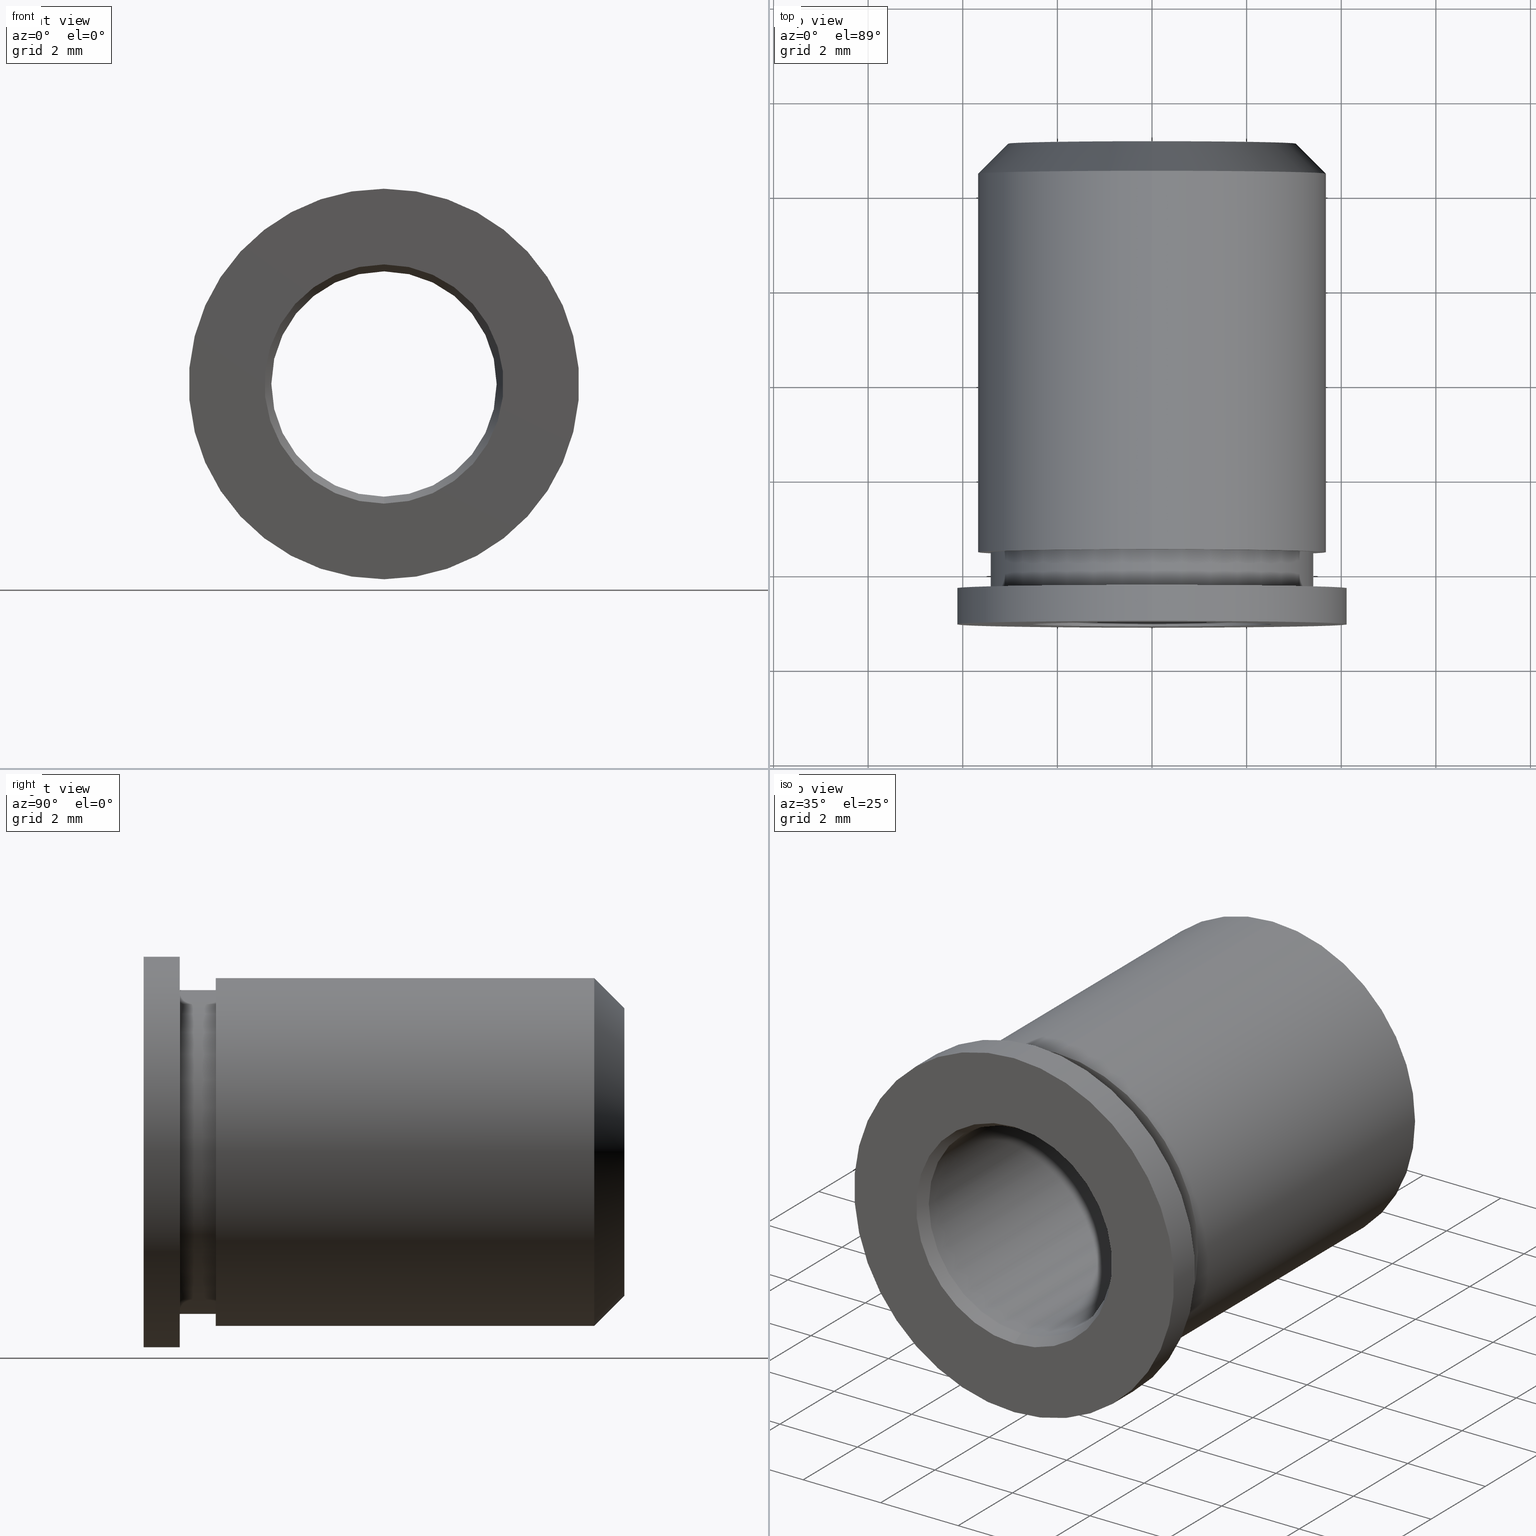
[diagram: canonical four-view strip — front | top / right | iso, engineering-drawing reading convention]
A machine part, canonical four-view strip (front | top / right | iso — engineering-drawing reading convention). The complete STEP part file that produces these views, byte-faithful:
ISO-10303-21;
HEADER;
FILE_DESCRIPTION (( 'STEP AP214' ),
    '1' );
FILE_NAME ('18988-E0W.STEP',
    '2009-04-23T20:28:47',
    ( '' ),
    ( '' ),
    'SwSTEP 2.0',
    'SolidWorks 2007',
    '' );
FILE_SCHEMA (( 'AUTOMOTIVE_DESIGN' ));
ENDSEC;

DATA;
#1 = ORIENTED_EDGE ( 'NONE', *, *, #207, .T. ) ;
#2 = ORIENTED_EDGE ( 'NONE', *, *, #3, .F. ) ;
#3 = EDGE_CURVE ( 'NONE', #29, #113, #163, .T. ) ;
#4 = ADVANCED_FACE ( 'NONE', ( #158 ), #284, .T. ) ;
#5 = EDGE_LOOP ( 'NONE', ( #60, #44, #59, #37 ) ) ;
#6 = EDGE_CURVE ( 'NONE', #117, #120, #211, .T. ) ;
#7 = ORIENTED_EDGE ( 'NONE', *, *, #6, .F. ) ;
#8 = ORIENTED_EDGE ( 'NONE', *, *, #115, .T. ) ;
#9 = ORIENTED_EDGE ( 'NONE', *, *, #41, .T. ) ;
#10 = ADVANCED_FACE ( 'NONE', ( #212, #187 ), #217, .T. ) ;
#11 = EDGE_LOOP ( 'NONE', ( #12, #13 ) ) ;
#12 = ORIENTED_EDGE ( 'NONE', *, *, #3, .T. ) ;
#13 = ORIENTED_EDGE ( 'NONE', *, *, #95, .T. ) ;
#14 = EDGE_LOOP ( 'NONE', ( #15, #38 ) ) ;
#15 = ORIENTED_EDGE ( 'NONE', *, *, #16, .F. ) ;
#16 = EDGE_CURVE ( 'NONE', #96, #89, #157, .T. ) ;
#17 = ORIENTED_EDGE ( 'NONE', *, *, #18, .F. ) ;
#18 = EDGE_CURVE ( 'NONE', #87, #75, #230, .T. ) ;
#19 = ORIENTED_EDGE ( 'NONE', *, *, #76, .F. ) ;
#20 = ORIENTED_EDGE ( 'NONE', *, *, #21, .F. ) ;
#21 = EDGE_CURVE ( 'NONE', #236, #280, #179, .T. ) ;
#22 = ORIENTED_EDGE ( 'NONE', *, *, #82, .T. ) ;
#23 = EDGE_LOOP ( 'NONE', ( #57, #58, #45, #46 ) ) ;
#24 = ADVANCED_FACE ( 'NONE', ( #175, #174 ), #265, .T. ) ;
#25 = EDGE_LOOP ( 'NONE', ( #112, #78, #81, #110 ) ) ;
#26 = EDGE_CURVE ( 'NONE', #113, #125, #260, .T. ) ;
#27 = ORIENTED_EDGE ( 'NONE', *, *, #82, .F. ) ;
#28 = ORIENTED_EDGE ( 'NONE', *, *, #61, .F. ) ;
#29 = VERTEX_POINT ( 'NONE', #256 ) ;
#30 = VERTEX_POINT ( 'NONE', #255 ) ;
#31 = ORIENTED_EDGE ( 'NONE', *, *, #128, .F. ) ;
#32 = ADVANCED_FACE ( 'NONE', ( #254 ), #332, .T. ) ;
#33 = ADVANCED_FACE ( 'NONE', ( #294 ), #309, .T. ) ;
#34 = ORIENTED_EDGE ( 'NONE', *, *, #35, .T. ) ;
#35 = EDGE_CURVE ( 'NONE', #117, #92, #355, .T. ) ;
#36 = ORIENTED_EDGE ( 'NONE', *, *, #90, .F. ) ;
#37 = ORIENTED_EDGE ( 'NONE', *, *, #43, .F. ) ;
#38 = ORIENTED_EDGE ( 'NONE', *, *, #73, .F. ) ;
#39 = ADVANCED_FACE ( 'NONE', ( #312 ), #383, .F. ) ;
#40 = EDGE_LOOP ( 'NONE', ( #19, #20, #22, #275 ) ) ;
#41 = EDGE_CURVE ( 'NONE', #30, #125, #375, .T. ) ;
#42 = ADVANCED_FACE ( 'NONE', ( #376 ), #344, .T. ) ;
#43 = EDGE_CURVE ( 'NONE', #92, #94, #352, .T. ) ;
#44 = ORIENTED_EDGE ( 'NONE', *, *, #6, .T. ) ;
#45 = ORIENTED_EDGE ( 'NONE', *, *, #90, .T. ) ;
#46 = ORIENTED_EDGE ( 'NONE', *, *, #41, .F. ) ;
#47 = EDGE_LOOP ( 'NONE', ( #48, #2, #8, #9 ) ) ;
#48 = ORIENTED_EDGE ( 'NONE', *, *, #26, .F. ) ;
#49 = EDGE_LOOP ( 'NONE', ( #164, #1, #135, #245 ) ) ;
#50 = ORIENTED_EDGE ( 'NONE', *, *, #108, .F. ) ;
#51 = ORIENTED_EDGE ( 'NONE', *, *, #101, .T. ) ;
#52 = EDGE_LOOP ( 'NONE', ( #51, #55 ) ) ;
#53 = EDGE_LOOP ( 'NONE', ( #56, #17 ) ) ;
#54 = ADVANCED_FACE ( 'NONE', ( #368 ), #378, .T. ) ;
#55 = ORIENTED_EDGE ( 'NONE', *, *, #43, .T. ) ;
#56 = ORIENTED_EDGE ( 'NONE', *, *, #100, .F. ) ;
#57 = ORIENTED_EDGE ( 'NONE', *, *, #72, .F. ) ;
#58 = ORIENTED_EDGE ( 'NONE', *, *, #18, .T. ) ;
#59 = ORIENTED_EDGE ( 'NONE', *, *, #80, .T. ) ;
#60 = ORIENTED_EDGE ( 'NONE', *, *, #35, .F. ) ;
#61 = EDGE_CURVE ( 'NONE', #125, #30, #291, .T. ) ;
#62 = EDGE_CURVE ( 'NONE', #63, #124, #551, .T. ) ;
#63 = VERTEX_POINT ( 'NONE', #538 ) ;
#64 = ORIENTED_EDGE ( 'NONE', *, *, #65, .F. ) ;
#65 = EDGE_CURVE ( 'NONE', #122, #63, #507, .T. ) ;
#66 = ADVANCED_FACE ( 'NONE', ( #394 ), #557, .T. ) ;
#67 = EDGE_LOOP ( 'NONE', ( #68, #77, #86, #64 ) ) ;
#68 = ORIENTED_EDGE ( 'NONE', *, *, #102, .T. ) ;
#69 = ORIENTED_EDGE ( 'NONE', *, *, #84, .T. ) ;
#70 = EDGE_LOOP ( 'NONE', ( #71, #7 ) ) ;
#71 = ORIENTED_EDGE ( 'NONE', *, *, #116, .F. ) ;
#72 = EDGE_CURVE ( 'NONE', #87, #30, #517, .T. ) ;
#73 = EDGE_CURVE ( 'NONE', #89, #96, #398, .T. ) ;
#74 = ORIENTED_EDGE ( 'NONE', *, *, #100, .T. ) ;
#75 = VERTEX_POINT ( 'NONE', #396 ) ;
#76 = EDGE_CURVE ( 'NONE', #280, #89, #520, .T. ) ;
#77 = ORIENTED_EDGE ( 'NONE', *, *, #85, .T. ) ;
#78 = ORIENTED_EDGE ( 'NONE', *, *, #26, .T. ) ;
#79 = ORIENTED_EDGE ( 'NONE', *, *, #80, .F. ) ;
#80 = EDGE_CURVE ( 'NONE', #120, #94, #446, .T. ) ;
#81 = ORIENTED_EDGE ( 'NONE', *, *, #61, .T. ) ;
#82 = EDGE_CURVE ( 'NONE', #236, #96, #561, .T. ) ;
#83 = ORIENTED_EDGE ( 'NONE', *, *, #84, .F. ) ;
#84 = EDGE_CURVE ( 'NONE', #124, #63, #449, .T. ) ;
#85 = EDGE_CURVE ( 'NONE', #123, #124, #487, .T. ) ;
#86 = ORIENTED_EDGE ( 'NONE', *, *, #62, .F. ) ;
#87 = VERTEX_POINT ( 'NONE', #483 ) ;
#88 = ORIENTED_EDGE ( 'NONE', *, *, #72, .T. ) ;
#89 = VERTEX_POINT ( 'NONE', #482 ) ;
#90 = EDGE_CURVE ( 'NONE', #75, #125, #430, .T. ) ;
#91 = ADVANCED_FACE ( 'NONE', ( #573 ), #467, .T. ) ;
#92 = VERTEX_POINT ( 'NONE', #436 ) ;
#93 = ORIENTED_EDGE ( 'NONE', *, *, #101, .F. ) ;
#94 = VERTEX_POINT ( 'NONE', #435 ) ;
#95 = EDGE_CURVE ( 'NONE', #113, #29, #434, .T. ) ;
#96 = VERTEX_POINT ( 'NONE', #475 ) ;
#97 = ORIENTED_EDGE ( 'NONE', *, *, #73, .T. ) ;
#98 = ADVANCED_FACE ( 'NONE', ( #474, #473 ), #424, .T. ) ;
#99 = EDGE_LOOP ( 'NONE', ( #121, #69 ) ) ;
#100 = EDGE_CURVE ( 'NONE', #75, #87, #419, .T. ) ;
#101 = EDGE_CURVE ( 'NONE', #94, #92, #505, .T. ) ;
#102 = EDGE_CURVE ( 'NONE', #122, #123, #499, .T. ) ;
#103 = ADVANCED_FACE ( 'NONE', ( #494 ), #407, .T. ) ;
#104 = EDGE_LOOP ( 'NONE', ( #119, #34, #93, #79 ) ) ;
#105 = EDGE_LOOP ( 'NONE', ( #31, #114, #97, #27 ) ) ;
#106 = ORIENTED_EDGE ( 'NONE', *, *, #85, .F. ) ;
#107 = ORIENTED_EDGE ( 'NONE', *, *, #108, .T. ) ;
#108 = EDGE_CURVE ( 'NONE', #123, #122, #408, .T. ) ;
#109 = ORIENTED_EDGE ( 'NONE', *, *, #65, .T. ) ;
#110 = ORIENTED_EDGE ( 'NONE', *, *, #115, .F. ) ;
#111 = EDGE_LOOP ( 'NONE', ( #74, #88, #28, #36 ) ) ;
#112 = ORIENTED_EDGE ( 'NONE', *, *, #95, .F. ) ;
#113 = VERTEX_POINT ( 'NONE', #530 ) ;
#114 = ORIENTED_EDGE ( 'NONE', *, *, #76, .T. ) ;
#115 = EDGE_CURVE ( 'NONE', #29, #30, #529, .T. ) ;
#116 = EDGE_CURVE ( 'NONE', #120, #117, #525, .T. ) ;
#117 = VERTEX_POINT ( 'NONE', #461 ) ;
#118 = ADVANCED_FACE ( 'NONE', ( #460 ), #615, .F. ) ;
#119 = ORIENTED_EDGE ( 'NONE', *, *, #116, .T. ) ;
#120 = VERTEX_POINT ( 'NONE', #605 ) ;
#121 = ORIENTED_EDGE ( 'NONE', *, *, #62, .T. ) ;
#122 = VERTEX_POINT ( 'NONE', #649 ) ;
#123 = VERTEX_POINT ( 'NONE', #580 ) ;
#124 = VERTEX_POINT ( 'NONE', #593 ) ;
#125 = VERTEX_POINT ( 'NONE', #646 ) ;
#126 = EDGE_LOOP ( 'NONE', ( #106, #107, #109, #83 ) ) ;
#127 = ORIENTED_EDGE ( 'NONE', *, *, #242, .F. ) ;
#128 = EDGE_CURVE ( 'NONE', #280, #236, #604, .T. ) ;
#129 =( LENGTH_UNIT ( ) NAMED_UNIT ( * ) SI_UNIT ( .MILLI., .METRE. ) );
#130 = MECHANICAL_DESIGN_GEOMETRIC_PRESENTATION_REPRESENTATION (  '', ( #132 ), #218 ) ;
#131 = PRESENTATION_LAYER_ASSIGNMENT (  '', '', ( #132 ) ) ;
#132 = STYLED_ITEM ( 'NONE', ( #180 ), #10 ) ;
#133 = ADVANCED_FACE ( 'NONE', ( #626 ), #618, .F. ) ;
#134 = ORIENTED_EDGE ( 'NONE', *, *, #242, .T. ) ;
#135 = ORIENTED_EDGE ( 'NONE', *, *, #148, .T. ) ;
#136 = ORIENTED_EDGE ( 'NONE', *, *, #207, .F. ) ;
#137 = COLOUR_RGB ( '',0.6274509803921568500, 0.4196078431372549100, 0.1882352941176470600 ) ;
#138 = UNCERTAINTY_MEASURE_WITH_UNIT (LENGTH_MEASURE( 1.000000000000000100E-005 ), #194, 'distance_accuracy_value', 'NONE');
#139 =( NAMED_UNIT ( * ) SI_UNIT ( $, .STERADIAN. ) SOLID_ANGLE_UNIT ( ) );
#140 = VERTEX_POINT ( 'NONE', #619 ) ;
#141 = ORIENTED_EDGE ( 'NONE', *, *, #237, .T. ) ;
#142 = ADVANCED_FACE ( 'NONE', ( #608 ), #641, .F. ) ;
#143 =( NAMED_UNIT ( * ) PLANE_ANGLE_UNIT ( ) SI_UNIT ( $, .RADIAN. ) );
#144 =( LENGTH_UNIT ( ) NAMED_UNIT ( * ) SI_UNIT ( .MILLI., .METRE. ) );
#145 = MECHANICAL_DESIGN_GEOMETRIC_PRESENTATION_REPRESENTATION (  '', ( #167 ), #266 ) ;
#146 = PRESENTATION_LAYER_ASSIGNMENT (  '', '', ( #167 ) ) ;
#147 = ORIENTED_EDGE ( 'NONE', *, *, #148, .F. ) ;
#148 = EDGE_CURVE ( 'NONE', #243, #224, #611, .T. ) ;
#149 = DIRECTION ( 'NONE',  ( 0.0000000000000000000, 0.0000000000000000000, 1.000000000000000000 ) ) ;
#150 = DIRECTION ( 'NONE',  ( 0.0000000000000000000, 1.000000000000000000, 0.0000000000000000000 ) ) ;
#151 = CARTESIAN_POINT ( 'NONE',  ( 2.063750000000002000, 5.079999999999999200, 0.0000000000000000000 ) ) ;
#152 = AXIS2_PLACEMENT_3D ( 'NONE', #151, #150, #149 ) ;
#153 = CARTESIAN_POINT ( 'NONE',  ( 1.508592567273786700E-015, 5.079999999999999200, 0.0000000000000000000 ) ) ;
#154 = DIRECTION ( 'NONE',  ( 0.0000000000000000000, 0.0000000000000000000, 1.000000000000000000 ) ) ;
#155 = DIRECTION ( 'NONE',  ( 0.0000000000000000000, 1.000000000000000000, 0.0000000000000000000 ) ) ;
#156 = AXIS2_PLACEMENT_3D ( 'NONE', #153, #155, #154 ) ;
#157 = CIRCLE ( 'NONE', #156, 2.527896968374166300 ) ;
#158 = FACE_OUTER_BOUND ( 'NONE', #23, .T. ) ;
#159 = DIRECTION ( 'NONE',  ( 0.0000000000000000000, 0.0000000000000000000, 1.000000000000000000 ) ) ;
#160 = DIRECTION ( 'NONE',  ( 0.0000000000000000000, 1.000000000000000000, 0.0000000000000000000 ) ) ;
#161 = CARTESIAN_POINT ( 'NONE',  ( 1.508592567273786700E-015, 5.079999999999999200, 0.0000000000000000000 ) ) ;
#162 = AXIS2_PLACEMENT_3D ( 'NONE', #161, #160, #159 ) ;
#163 = CIRCLE ( 'NONE', #162, 3.041649999999998400 ) ;
#164 = ORIENTED_EDGE ( 'NONE', *, *, #237, .F. ) ;
#165 = ORIENTED_EDGE ( 'NONE', *, *, #274, .T. ) ;
#166 = ORIENTED_EDGE ( 'NONE', *, *, #279, .F. ) ;
#167 = STYLED_ITEM ( 'NONE', ( #168 ), #24 ) ;
#168 = PRESENTATION_STYLE_ASSIGNMENT (( #169 ) ) ;
#169 = SURFACE_STYLE_USAGE ( .BOTH. , #170 ) ;
#170 = SURFACE_SIDE_STYLE ('',( #171 ) ) ;
#171 = SURFACE_STYLE_FILL_AREA ( #172 ) ;
#172 = FILL_AREA_STYLE ('',( #225 ) ) ;
#173 = COLOUR_RGB ( '',0.6274509803921568500, 0.4196078431372549100, 0.1882352941176470600 ) ;
#174 = FACE_OUTER_BOUND ( 'NONE', #53, .T. ) ;
#175 = FACE_BOUND ( 'NONE', #52, .T. ) ;
#176 = DIRECTION ( 'NONE',  ( 0.0000000000000000000, 0.0000000000000000000, 1.000000000000000000 ) ) ;
#177 = DIRECTION ( 'NONE',  ( 0.0000000000000000000, 1.000000000000000000, 0.0000000000000000000 ) ) ;
#178 = AXIS2_PLACEMENT_3D ( 'NONE', #231, #177, #176 ) ;
#179 = CIRCLE ( 'NONE', #178, 2.381250000000000500 ) ;
#180 = PRESENTATION_STYLE_ASSIGNMENT (( #181 ) ) ;
#181 = SURFACE_STYLE_USAGE ( .BOTH. , #182 ) ;
#182 = SURFACE_SIDE_STYLE ('',( #183 ) ) ;
#183 = SURFACE_STYLE_FILL_AREA ( #184 ) ;
#184 = FILL_AREA_STYLE ('',( #185 ) ) ;
#185 = FILL_AREA_STYLE_COLOUR ( '', #186 ) ;
#186 = COLOUR_RGB ( '',0.6274509803921568500, 0.4196078431372549100, 0.1882352941176470600 ) ;
#187 = FACE_BOUND ( 'NONE', #14, .T. ) ;
#188 = DIRECTION ( 'NONE',  ( 0.0000000000000000000, 0.0000000000000000000, 1.000000000000000000 ) ) ;
#189 = SURFACE_STYLE_FILL_AREA ( #190 ) ;
#190 = FILL_AREA_STYLE ('',( #191 ) ) ;
#191 = FILL_AREA_STYLE_COLOUR ( '', #137 ) ;
#192 = ORIENTED_EDGE ( 'NONE', *, *, #21, .T. ) ;
#193 =( NAMED_UNIT ( * ) PLANE_ANGLE_UNIT ( ) SI_UNIT ( $, .RADIAN. ) );
#194 =( LENGTH_UNIT ( ) NAMED_UNIT ( * ) SI_UNIT ( .MILLI., .METRE. ) );
#195 = MECHANICAL_DESIGN_GEOMETRIC_PRESENTATION_REPRESENTATION (  '', ( #197 ), #206 ) ;
#196 = PRESENTATION_LAYER_ASSIGNMENT (  '', '', ( #197 ) ) ;
#197 = STYLED_ITEM ( 'NONE', ( #198 ), #4 ) ;
#198 = PRESENTATION_STYLE_ASSIGNMENT (( #199 ) ) ;
#199 = SURFACE_STYLE_USAGE ( .BOTH. , #200 ) ;
#200 = SURFACE_SIDE_STYLE ('',( #189 ) ) ;
#201 = CLOSED_SHELL ( 'NONE', ( #133, #244, #118, #33, #32, #91, #66, #103, #98, #54, #24, #4, #42, #10, #39, #273, #142, #220 ) ) ;
#202 = MANIFOLD_SOLID_BREP ( 'NONE', #201 ) ;
#203 = ORIENTED_EDGE ( 'NONE', *, *, #204, .F. ) ;
#204 = EDGE_CURVE ( 'NONE', #140, #236, #764, .T. ) ;
#205 = CARTESIAN_POINT ( 'NONE',  ( 1.508592567273786700E-015, 5.080000000000000100, 0.0000000000000000000 ) ) ;
#206 =( GEOMETRIC_REPRESENTATION_CONTEXT ( 3 ) GLOBAL_UNCERTAINTY_ASSIGNED_CONTEXT ( ( #138 ) ) GLOBAL_UNIT_ASSIGNED_CONTEXT ( ( #194, #193, #139 ) ) REPRESENTATION_CONTEXT ( 'NONE', 'WORKASPACE' ) );
#207 = EDGE_CURVE ( 'NONE', #140, #243, #675, .T. ) ;
#208 = DIRECTION ( 'NONE',  ( 0.0000000000000000000, 1.000000000000000000, 0.0000000000000000000 ) ) ;
#209 = CARTESIAN_POINT ( 'NONE',  ( 1.508592567273786700E-015, -4.317999999999999600, 0.0000000000000000000 ) ) ;
#210 = AXIS2_PLACEMENT_3D ( 'NONE', #209, #208, #188 ) ;
#211 = CIRCLE ( 'NONE', #210, 3.422649999999999500 ) ;
#212 = FACE_OUTER_BOUND ( 'NONE', #11, .T. ) ;
#213 =( LENGTH_UNIT ( ) NAMED_UNIT ( * ) SI_UNIT ( .MILLI., .METRE. ) );
#214 = DIRECTION ( 'NONE',  ( 0.0000000000000000000, 0.0000000000000000000, 1.000000000000000000 ) ) ;
#215 = DIRECTION ( 'NONE',  ( 0.0000000000000000000, 1.000000000000000000, 0.0000000000000000000 ) ) ;
#216 =( GEOMETRIC_REPRESENTATION_CONTEXT ( 3 ) GLOBAL_UNCERTAINTY_ASSIGNED_CONTEXT ( ( #267 ) ) GLOBAL_UNIT_ASSIGNED_CONTEXT ( ( #270, #269, #268 ) ) REPRESENTATION_CONTEXT ( 'NONE', 'WORKASPACE' ) );
#217 = PLANE ( 'NONE',  #152 ) ;
#218 =( GEOMETRIC_REPRESENTATION_CONTEXT ( 3 ) GLOBAL_UNCERTAINTY_ASSIGNED_CONTEXT ( ( #239 ) ) GLOBAL_UNIT_ASSIGNED_CONTEXT ( ( #129, #241, #240 ) ) REPRESENTATION_CONTEXT ( 'NONE', 'WORKASPACE' ) );
#219 = ORIENTED_EDGE ( 'NONE', *, *, #102, .F. ) ;
#220 = ADVANCED_FACE ( 'NONE', ( #714, #765 ), #766, .F. ) ;
#221 = EDGE_LOOP ( 'NONE', ( #286, #165 ) ) ;
#222 = EDGE_LOOP ( 'NONE', ( #219, #50 ) ) ;
#223 = EDGE_CURVE ( 'NONE', #224, #232, #705, .T. ) ;
#224 = VERTEX_POINT ( 'NONE', #693 ) ;
#225 = FILL_AREA_STYLE_COLOUR ( '', #173 ) ;
#226 = DIRECTION ( 'NONE',  ( 0.0000000000000000000, 0.0000000000000000000, 1.000000000000000000 ) ) ;
#227 = DIRECTION ( 'NONE',  ( 0.0000000000000000000, 1.000000000000000000, 0.0000000000000000000 ) ) ;
#228 = CARTESIAN_POINT ( 'NONE',  ( 1.508592567273786700E-015, -3.556000000000000900, 0.0000000000000000000 ) ) ;
#229 = AXIS2_PLACEMENT_3D ( 'NONE', #228, #227, #226 ) ;
#230 = CIRCLE ( 'NONE', #229, 3.676649999999999100 ) ;
#231 = CARTESIAN_POINT ( 'NONE',  ( 1.508592567273786700E-015, 4.826000000000000500, 0.0000000000000000000 ) ) ;
#232 = VERTEX_POINT ( 'NONE', #692 ) ;
#233 = UNCERTAINTY_MEASURE_WITH_UNIT (LENGTH_MEASURE( 1.000000000000000100E-005 ), #144, 'distance_accuracy_value', 'NONE');
#234 =( NAMED_UNIT ( * ) SI_UNIT ( $, .STERADIAN. ) SOLID_ANGLE_UNIT ( ) );
#235 = ORIENTED_EDGE ( 'NONE', *, *, #128, .T. ) ;
#236 = VERTEX_POINT ( 'NONE', #715 ) ;
#237 = EDGE_CURVE ( 'NONE', #140, #232, #691, .T. ) ;
#238 = ORIENTED_EDGE ( 'NONE', *, *, #223, .F. ) ;
#239 = UNCERTAINTY_MEASURE_WITH_UNIT (LENGTH_MEASURE( 1.000000000000000100E-005 ), #129, 'distance_accuracy_value', 'NONE');
#240 =( NAMED_UNIT ( * ) SI_UNIT ( $, .STERADIAN. ) SOLID_ANGLE_UNIT ( ) );
#241 =( NAMED_UNIT ( * ) PLANE_ANGLE_UNIT ( ) SI_UNIT ( $, .RADIAN. ) );
#242 = EDGE_CURVE ( 'NONE', #243, #140, #726, .T. ) ;
#243 = VERTEX_POINT ( 'NONE', #752 ) ;
#244 = ADVANCED_FACE ( 'NONE', ( #751 ), #767, .F. ) ;
#245 = ORIENTED_EDGE ( 'NONE', *, *, #274, .F. ) ;
#246 = STYLED_ITEM ( 'NONE', ( #247 ), #32 ) ;
#247 = PRESENTATION_STYLE_ASSIGNMENT (( #248 ) ) ;
#248 = SURFACE_STYLE_USAGE ( .BOTH. , #249 ) ;
#249 = SURFACE_SIDE_STYLE ('',( #250 ) ) ;
#250 = SURFACE_STYLE_FILL_AREA ( #251 ) ;
#251 = FILL_AREA_STYLE ('',( #252 ) ) ;
#252 = FILL_AREA_STYLE_COLOUR ( '', #253 ) ;
#253 = COLOUR_RGB ( '',0.6274509803921568500, 0.4196078431372549100, 0.1882352941176470600 ) ;
#254 = FACE_OUTER_BOUND ( 'NONE', #111, .T. ) ;
#255 = CARTESIAN_POINT ( 'NONE',  ( 1.958852332682297700E-015, 4.445000000000000300, -3.676649999999996000 ) ) ;
#256 = CARTESIAN_POINT ( 'NONE',  ( 1.508592567273786700E-015, 5.079999999999999200, -3.041649999999998400 ) ) ;
#257 = DIRECTION ( 'NONE',  ( 8.659560562354921800E-017, -0.7071067811865484600, 0.7071067811865465700 ) ) ;
#258 = VECTOR ( 'NONE', #257, 1000.000000000000000 ) ;
#259 = CARTESIAN_POINT ( 'NONE',  ( 1.881087260936441500E-015, 5.079999999999999200, 3.041649999999998400 ) ) ;
#260 = LINE ( 'NONE', #259, #258 ) ;
#261 = DIRECTION ( 'NONE',  ( 0.0000000000000000000, 0.0000000000000000000, -1.000000000000000000 ) ) ;
#262 = DIRECTION ( 'NONE',  ( 0.0000000000000000000, -1.000000000000000000, 0.0000000000000000000 ) ) ;
#263 = CARTESIAN_POINT ( 'NONE',  ( 2.063750000000002000, -3.556000000000000000, 0.0000000000000000000 ) ) ;
#264 = AXIS2_PLACEMENT_3D ( 'NONE', #263, #262, #261 ) ;
#265 = PLANE ( 'NONE',  #264 ) ;
#266 =( GEOMETRIC_REPRESENTATION_CONTEXT ( 3 ) GLOBAL_UNCERTAINTY_ASSIGNED_CONTEXT ( ( #233 ) ) GLOBAL_UNIT_ASSIGNED_CONTEXT ( ( #144, #143, #234 ) ) REPRESENTATION_CONTEXT ( 'NONE', 'WORKASPACE' ) );
#267 = UNCERTAINTY_MEASURE_WITH_UNIT (LENGTH_MEASURE( 1.000000000000000100E-005 ), #270, 'distance_accuracy_value', 'NONE');
#268 =( NAMED_UNIT ( * ) SI_UNIT ( $, .STERADIAN. ) SOLID_ANGLE_UNIT ( ) );
#269 =( NAMED_UNIT ( * ) PLANE_ANGLE_UNIT ( ) SI_UNIT ( $, .RADIAN. ) );
#270 =( LENGTH_UNIT ( ) NAMED_UNIT ( * ) SI_UNIT ( .MILLI., .METRE. ) );
#271 = MECHANICAL_DESIGN_GEOMETRIC_PRESENTATION_REPRESENTATION (  '', ( #246 ), #216 ) ;
#272 = PRESENTATION_LAYER_ASSIGNMENT (  '', '', ( #246 ) ) ;
#273 = ADVANCED_FACE ( 'NONE', ( #768 ), #729, .F. ) ;
#274 = EDGE_CURVE ( 'NONE', #232, #224, #697, .T. ) ;
#275 = ORIENTED_EDGE ( 'NONE', *, *, #16, .T. ) ;
#276 = ORIENTED_EDGE ( 'NONE', *, *, #204, .T. ) ;
#277 = EDGE_LOOP ( 'NONE', ( #134, #141, #238, #147 ) ) ;
#278 = ORIENTED_EDGE ( 'NONE', *, *, #279, .T. ) ;
#279 = EDGE_CURVE ( 'NONE', #243, #280, #721, .T. ) ;
#280 = VERTEX_POINT ( 'NONE', #717 ) ;
#281 = DIRECTION ( 'NONE',  ( 0.0000000000000000000, 0.0000000000000000000, 1.000000000000000000 ) ) ;
#282 = DIRECTION ( 'NONE',  ( 0.0000000000000000000, 1.000000000000000000, 0.0000000000000000000 ) ) ;
#283 = AXIS2_PLACEMENT_3D ( 'NONE', #205, #282, #281 ) ;
#284 = CYLINDRICAL_SURFACE ( 'NONE', #283, 3.676649999999997300 ) ;
#285 = EDGE_LOOP ( 'NONE', ( #166, #136, #276, #192 ) ) ;
#286 = ORIENTED_EDGE ( 'NONE', *, *, #223, .T. ) ;
#287 = EDGE_LOOP ( 'NONE', ( #127, #278, #235, #203 ) ) ;
#288 = DIRECTION ( 'NONE',  ( 0.0000000000000000000, 0.0000000000000000000, 1.000000000000000000 ) ) ;
#289 = DIRECTION ( 'NONE',  ( 0.0000000000000000000, 1.000000000000000000, 0.0000000000000000000 ) ) ;
#290 = AXIS2_PLACEMENT_3D ( 'NONE', #377, #289, #288 ) ;
#291 = CIRCLE ( 'NONE', #347, 3.676649999999996000 ) ;
#292 = MECHANICAL_DESIGN_GEOMETRIC_PRESENTATION_REPRESENTATION (  '', ( #384 ), #329 ) ;
#293 = PRESENTATION_LAYER_ASSIGNMENT (  '', '', ( #384 ) ) ;
#294 = FACE_OUTER_BOUND ( 'NONE', #25, .T. ) ;
#295 =( NAMED_UNIT ( * ) SI_UNIT ( $, .STERADIAN. ) SOLID_ANGLE_UNIT ( ) );
#296 = STYLED_ITEM ( 'NONE', ( #345 ), #33 ) ;
#297 =( GEOMETRIC_REPRESENTATION_CONTEXT ( 3 ) GLOBAL_UNCERTAINTY_ASSIGNED_CONTEXT ( ( #380 ) ) GLOBAL_UNIT_ASSIGNED_CONTEXT ( ( #386, #389, #381 ) ) REPRESENTATION_CONTEXT ( 'NONE', 'WORKASPACE' ) );
#298 = SURFACE_STYLE_USAGE ( .BOTH. , #318 ) ;
#299 = SURFACE_SIDE_STYLE ('',( #300 ) ) ;
#300 = SURFACE_STYLE_FILL_AREA ( #301 ) ;
#301 = FILL_AREA_STYLE ('',( #302 ) ) ;
#302 = FILL_AREA_STYLE_COLOUR ( '', #303 ) ;
#303 = COLOUR_RGB ( '',0.6274509803921568500, 0.4196078431372549100, 0.1882352941176470600 ) ;
#304 = AXIS2_PLACEMENT_3D ( 'NONE', #367, #342, #328 ) ;
#305 = SURFACE_STYLE_USAGE ( .BOTH. , #306 ) ;
#306 = SURFACE_SIDE_STYLE ('',( #307 ) ) ;
#307 = SURFACE_STYLE_FILL_AREA ( #362 ) ;
#308 = FILL_AREA_STYLE ('',( #343 ) ) ;
#309 = CONICAL_SURFACE ( 'NONE', #373, 3.041649999999998400, 0.7853981633974469500 ) ;
#310 = UNCERTAINTY_MEASURE_WITH_UNIT (LENGTH_MEASURE( 1.000000000000000100E-005 ), #334, 'distance_accuracy_value', 'NONE');
#311 = PRESENTATION_LAYER_ASSIGNMENT (  '', '', ( #296 ) ) ;
#312 = FACE_OUTER_BOUND ( 'NONE', #40, .T. ) ;
#313 = DIRECTION ( 'NONE',  ( 0.0000000000000000000, 0.0000000000000000000, -1.000000000000000000 ) ) ;
#314 = FILL_AREA_STYLE_COLOUR ( '', #363 ) ;
#315 = VECTOR ( 'NONE', #353, 1000.000000000000000 ) ;
#316 =( LENGTH_UNIT ( ) NAMED_UNIT ( * ) SI_UNIT ( .MILLI., .METRE. ) );
#317 = MECHANICAL_DESIGN_GEOMETRIC_PRESENTATION_REPRESENTATION (  '', ( #357 ), #387 ) ;
#318 = SURFACE_SIDE_STYLE ('',( #319 ) ) ;
#319 = SURFACE_STYLE_FILL_AREA ( #308 ) ;
#320 = DIRECTION ( 'NONE',  ( 0.0000000000000000000, 0.0000000000000000000, 1.000000000000000000 ) ) ;
#321 = DIRECTION ( 'NONE',  ( 0.0000000000000000000, 1.000000000000000000, 0.0000000000000000000 ) ) ;
#322 = CARTESIAN_POINT ( 'NONE',  ( 1.508592567273786700E-015, 4.445000000000000300, 0.0000000000000000000 ) ) ;
#323 =( NAMED_UNIT ( * ) PLANE_ANGLE_UNIT ( ) SI_UNIT ( $, .RADIAN. ) );
#324 =( NAMED_UNIT ( * ) PLANE_ANGLE_UNIT ( ) SI_UNIT ( $, .RADIAN. ) );
#325 = DIRECTION ( 'NONE',  ( 0.0000000000000000000, 0.0000000000000000000, 1.000000000000000000 ) ) ;
#326 = UNCERTAINTY_MEASURE_WITH_UNIT (LENGTH_MEASURE( 1.000000000000000100E-005 ), #316, 'distance_accuracy_value', 'NONE');
#327 =( NAMED_UNIT ( * ) SI_UNIT ( $, .STERADIAN. ) SOLID_ANGLE_UNIT ( ) );
#328 = DIRECTION ( 'NONE',  ( 0.0000000000000000000, 0.0000000000000000000, 1.000000000000000000 ) ) ;
#329 =( GEOMETRIC_REPRESENTATION_CONTEXT ( 3 ) GLOBAL_UNCERTAINTY_ASSIGNED_CONTEXT ( ( #331 ) ) GLOBAL_UNIT_ASSIGNED_CONTEXT ( ( #382, #324, #371 ) ) REPRESENTATION_CONTEXT ( 'NONE', 'WORKASPACE' ) );
#330 = COLOUR_RGB ( '',0.6274509803921568500, 0.4196078431372549100, 0.1882352941176470600 ) ;
#331 = UNCERTAINTY_MEASURE_WITH_UNIT (LENGTH_MEASURE( 1.000000000000000100E-005 ), #382, 'distance_accuracy_value', 'NONE');
#332 = CYLINDRICAL_SURFACE ( 'NONE', #304, 3.676649999999997300 ) ;
#333 =( NAMED_UNIT ( * ) PLANE_ANGLE_UNIT ( ) SI_UNIT ( $, .RADIAN. ) );
#334 =( LENGTH_UNIT ( ) NAMED_UNIT ( * ) SI_UNIT ( .MILLI., .METRE. ) );
#335 = PRESENTATION_STYLE_ASSIGNMENT (( #336 ) ) ;
#336 = SURFACE_STYLE_USAGE ( .BOTH. , #337 ) ;
#337 = SURFACE_SIDE_STYLE ('',( #338 ) ) ;
#338 = SURFACE_STYLE_FILL_AREA ( #339 ) ;
#339 = FILL_AREA_STYLE ('',( #340 ) ) ;
#340 = FILL_AREA_STYLE_COLOUR ( '', #341 ) ;
#341 = COLOUR_RGB ( '',0.6274509803921568500, 0.4196078431372549100, 0.1882352941176470600 ) ;
#342 = DIRECTION ( 'NONE',  ( 0.0000000000000000000, 1.000000000000000000, 0.0000000000000000000 ) ) ;
#343 = FILL_AREA_STYLE_COLOUR ( '', #330 ) ;
#344 = CONICAL_SURFACE ( 'NONE', #392, 3.041649999999998400, 0.7853981633974469500 ) ;
#345 = PRESENTATION_STYLE_ASSIGNMENT (( #298 ) ) ;
#346 = CARTESIAN_POINT ( 'NONE',  ( 1.508592567273786700E-015, 4.445000000000000300, 0.0000000000000000000 ) ) ;
#347 = AXIS2_PLACEMENT_3D ( 'NONE', #346, #215, #214 ) ;
#348 = DIRECTION ( 'NONE',  ( 0.0000000000000000000, 0.0000000000000000000, 1.000000000000000000 ) ) ;
#349 = DIRECTION ( 'NONE',  ( 0.0000000000000000000, 1.000000000000000000, 0.0000000000000000000 ) ) ;
#350 = CARTESIAN_POINT ( 'NONE',  ( 1.508592567273786700E-015, -3.556000000000000900, 0.0000000000000000000 ) ) ;
#351 = AXIS2_PLACEMENT_3D ( 'NONE', #350, #349, #348 ) ;
#352 = CIRCLE ( 'NONE', #351, 3.422649999999999500 ) ;
#353 = DIRECTION ( 'NONE',  ( 0.0000000000000000000, 1.000000000000000000, 0.0000000000000000000 ) ) ;
#354 = CARTESIAN_POINT ( 'NONE',  ( 1.927746303983955100E-015, 5.080000000000000100, -3.422649999999999500 ) ) ;
#355 = LINE ( 'NONE', #354, #315 ) ;
#356 = PRESENTATION_LAYER_ASSIGNMENT (  '', '', ( #357 ) ) ;
#357 = STYLED_ITEM ( 'NONE', ( #358 ), #42 ) ;
#358 = PRESENTATION_STYLE_ASSIGNMENT (( #359 ) ) ;
#359 = SURFACE_STYLE_USAGE ( .BOTH. , #299 ) ;
#360 = CARTESIAN_POINT ( 'NONE',  ( 1.508592567273786700E-015, 4.826000000000000500, 0.0000000000000000000 ) ) ;
#361 = AXIS2_PLACEMENT_3D ( 'NONE', #360, #388, #325 ) ;
#362 = FILL_AREA_STYLE ('',( #314 ) ) ;
#363 = COLOUR_RGB ( '',0.6274509803921568500, 0.4196078431372549100, 0.1882352941176470600 ) ;
#364 = MECHANICAL_DESIGN_GEOMETRIC_PRESENTATION_REPRESENTATION (  '', ( #366 ), #297 ) ;
#365 = PRESENTATION_LAYER_ASSIGNMENT (  '', '', ( #366 ) ) ;
#366 = STYLED_ITEM ( 'NONE', ( #335 ), #54 ) ;
#367 = CARTESIAN_POINT ( 'NONE',  ( 1.508592567273786700E-015, 5.080000000000000100, 0.0000000000000000000 ) ) ;
#368 = FACE_OUTER_BOUND ( 'NONE', #5, .T. ) ;
#369 = DIRECTION ( 'NONE',  ( 0.0000000000000000000, 0.0000000000000000000, -1.000000000000000000 ) ) ;
#370 = DIRECTION ( 'NONE',  ( 0.0000000000000000000, -1.000000000000000000, 0.0000000000000000000 ) ) ;
#371 =( NAMED_UNIT ( * ) SI_UNIT ( $, .STERADIAN. ) SOLID_ANGLE_UNIT ( ) );
#372 = CARTESIAN_POINT ( 'NONE',  ( 1.508592567273786700E-015, 5.079999999999999200, 0.0000000000000000000 ) ) ;
#373 = AXIS2_PLACEMENT_3D ( 'NONE', #372, #370, #313 ) ;
#374 = AXIS2_PLACEMENT_3D ( 'NONE', #322, #321, #320 ) ;
#375 = CIRCLE ( 'NONE', #374, 3.676649999999996000 ) ;
#376 = FACE_OUTER_BOUND ( 'NONE', #47, .T. ) ;
#377 = CARTESIAN_POINT ( 'NONE',  ( 1.508592567273786700E-015, 5.080000000000000100, 0.0000000000000000000 ) ) ;
#378 = CYLINDRICAL_SURFACE ( 'NONE', #290, 3.422649999999999500 ) ;
#379 = MECHANICAL_DESIGN_GEOMETRIC_PRESENTATION_REPRESENTATION (  '', ( #296 ), #393 ) ;
#380 = UNCERTAINTY_MEASURE_WITH_UNIT (LENGTH_MEASURE( 1.000000000000000100E-005 ), #386, 'distance_accuracy_value', 'NONE');
#381 =( NAMED_UNIT ( * ) SI_UNIT ( $, .STERADIAN. ) SOLID_ANGLE_UNIT ( ) );
#382 =( LENGTH_UNIT ( ) NAMED_UNIT ( * ) SI_UNIT ( .MILLI., .METRE. ) );
#383 = CONICAL_SURFACE ( 'NONE', #361, 2.381250000000000500, 0.5235987755983032600 ) ;
#384 = STYLED_ITEM ( 'NONE', ( #385 ), #39 ) ;
#385 = PRESENTATION_STYLE_ASSIGNMENT (( #305 ) ) ;
#386 =( LENGTH_UNIT ( ) NAMED_UNIT ( * ) SI_UNIT ( .MILLI., .METRE. ) );
#387 =( GEOMETRIC_REPRESENTATION_CONTEXT ( 3 ) GLOBAL_UNCERTAINTY_ASSIGNED_CONTEXT ( ( #326 ) ) GLOBAL_UNIT_ASSIGNED_CONTEXT ( ( #316, #323, #327 ) ) REPRESENTATION_CONTEXT ( 'NONE', 'WORKASPACE' ) );
#388 = DIRECTION ( 'NONE',  ( 0.0000000000000000000, 1.000000000000000000, 0.0000000000000000000 ) ) ;
#389 =( NAMED_UNIT ( * ) PLANE_ANGLE_UNIT ( ) SI_UNIT ( $, .RADIAN. ) );
#390 = DIRECTION ( 'NONE',  ( 0.0000000000000000000, -1.000000000000000000, 0.0000000000000000000 ) ) ;
#391 = CARTESIAN_POINT ( 'NONE',  ( 1.508592567273786700E-015, 5.079999999999999200, 0.0000000000000000000 ) ) ;
#392 = AXIS2_PLACEMENT_3D ( 'NONE', #391, #390, #369 ) ;
#393 =( GEOMETRIC_REPRESENTATION_CONTEXT ( 3 ) GLOBAL_UNCERTAINTY_ASSIGNED_CONTEXT ( ( #310 ) ) GLOBAL_UNIT_ASSIGNED_CONTEXT ( ( #334, #333, #295 ) ) REPRESENTATION_CONTEXT ( 'NONE', 'WORKASPACE' ) );
#394 = FACE_OUTER_BOUND ( 'NONE', #67, .T. ) ;
#395 = VECTOR ( 'NONE', #489, 1000.000000000000000 ) ;
#396 = CARTESIAN_POINT ( 'NONE',  ( 1.508592567273786700E-015, -3.556000000000000900, 3.676649999999999100 ) ) ;
#397 = DIRECTION ( 'NONE',  ( 0.0000000000000000000, 0.0000000000000000000, 1.000000000000000000 ) ) ;
#398 = CIRCLE ( 'NONE', #401, 2.527896968374166300 ) ;
#399 = DIRECTION ( 'NONE',  ( 0.0000000000000000000, 1.000000000000000000, 0.0000000000000000000 ) ) ;
#400 = CARTESIAN_POINT ( 'NONE',  ( 1.508592567273786700E-015, 5.079999999999999200, 0.0000000000000000000 ) ) ;
#401 = AXIS2_PLACEMENT_3D ( 'NONE', #400, #399, #397 ) ;
#402 = UNCERTAINTY_MEASURE_WITH_UNIT (LENGTH_MEASURE( 1.000000000000000100E-005 ), #562, 'distance_accuracy_value', 'NONE');
#403 = AXIS2_PLACEMENT_3D ( 'NONE', #533, #532, #531 ) ;
#404 = DIRECTION ( 'NONE',  ( 0.0000000000000000000, 0.0000000000000000000, 1.000000000000000000 ) ) ;
#405 = DIRECTION ( 'NONE',  ( 0.0000000000000000000, 1.000000000000000000, 0.0000000000000000000 ) ) ;
#406 = AXIS2_PLACEMENT_3D ( 'NONE', #409, #405, #404 ) ;
#407 = CYLINDRICAL_SURFACE ( 'NONE', #406, 4.127499999999999500 ) ;
#408 = CIRCLE ( 'NONE', #403, 4.127499999999999500 ) ;
#409 = CARTESIAN_POINT ( 'NONE',  ( 1.508592567273786700E-015, 5.080000000000000100, 0.0000000000000000000 ) ) ;
#410 =( GEOMETRIC_REPRESENTATION_CONTEXT ( 3 ) GLOBAL_UNCERTAINTY_ASSIGNED_CONTEXT ( ( #521 ) ) GLOBAL_UNIT_ASSIGNED_CONTEXT ( ( #540, #539, #522 ) ) REPRESENTATION_CONTEXT ( 'NONE', 'WORKASPACE' ) );
#411 = DIRECTION ( 'NONE',  ( 0.0000000000000000000, 0.0000000000000000000, 1.000000000000000000 ) ) ;
#412 = DIRECTION ( 'NONE',  ( 0.0000000000000000000, 1.000000000000000000, 0.0000000000000000000 ) ) ;
#413 = AXIS2_PLACEMENT_3D ( 'NONE', #448, #412, #411 ) ;
#414 = AXIS2_PLACEMENT_3D ( 'NONE', #555, #537, #443 ) ;
#415 = DIRECTION ( 'NONE',  ( 0.0000000000000000000, 0.0000000000000000000, 1.000000000000000000 ) ) ;
#416 = DIRECTION ( 'NONE',  ( 0.0000000000000000000, 1.000000000000000000, 0.0000000000000000000 ) ) ;
#417 = CARTESIAN_POINT ( 'NONE',  ( 1.508592567273786700E-015, -3.556000000000000900, 0.0000000000000000000 ) ) ;
#418 = AXIS2_PLACEMENT_3D ( 'NONE', #417, #416, #415 ) ;
#419 = CIRCLE ( 'NONE', #418, 3.676649999999999100 ) ;
#420 = DIRECTION ( 'NONE',  ( 0.0000000000000000000, 0.0000000000000000000, 1.000000000000000000 ) ) ;
#421 = DIRECTION ( 'NONE',  ( 0.0000000000000000000, 1.000000000000000000, 0.0000000000000000000 ) ) ;
#422 = CARTESIAN_POINT ( 'NONE',  ( 2.063750000000002000, -4.318000000000000500, 0.0000000000000000000 ) ) ;
#423 = AXIS2_PLACEMENT_3D ( 'NONE', #422, #421, #420 ) ;
#424 = PLANE ( 'NONE',  #423 ) ;
#425 =( GEOMETRIC_REPRESENTATION_CONTEXT ( 3 ) GLOBAL_UNCERTAINTY_ASSIGNED_CONTEXT ( ( #548 ) ) GLOBAL_UNIT_ASSIGNED_CONTEXT ( ( #509, #550, #549 ) ) REPRESENTATION_CONTEXT ( 'NONE', 'WORKASPACE' ) );
#426 = FILL_AREA_STYLE_COLOUR ( '', #572 ) ;
#427 = DIRECTION ( 'NONE',  ( 0.0000000000000000000, 1.000000000000000000, 0.0000000000000000000 ) ) ;
#428 = VECTOR ( 'NONE', #427, 1000.000000000000000 ) ;
#429 = CARTESIAN_POINT ( 'NONE',  ( 1.508592567273786700E-015, 5.080000000000000100, 3.676649999999997300 ) ) ;
#430 = LINE ( 'NONE', #429, #428 ) ;
#431 = FILL_AREA_STYLE ('',( #426 ) ) ;
#432 = PRESENTATION_LAYER_ASSIGNMENT (  '', '', ( #433 ) ) ;
#433 = STYLED_ITEM ( 'NONE', ( #553 ), #66 ) ;
#434 = CIRCLE ( 'NONE', #479, 3.041649999999998400 ) ;
#435 = CARTESIAN_POINT ( 'NONE',  ( 1.508592567273786700E-015, -3.556000000000000900, 3.422649999999999500 ) ) ;
#436 = CARTESIAN_POINT ( 'NONE',  ( 1.927746303983955100E-015, -3.556000000000000900, -3.422649999999999500 ) ) ;
#437 = DIRECTION ( 'NONE',  ( 0.0000000000000000000, 0.0000000000000000000, 1.000000000000000000 ) ) ;
#438 = DIRECTION ( 'NONE',  ( 0.0000000000000000000, 1.000000000000000000, 0.0000000000000000000 ) ) ;
#439 = AXIS2_PLACEMENT_3D ( 'NONE', #468, #438, #437 ) ;
#440 = DIRECTION ( 'NONE',  ( 0.0000000000000000000, 1.000000000000000000, 0.0000000000000000000 ) ) ;
#441 = VECTOR ( 'NONE', #440, 1000.000000000000000 ) ;
#442 = CARTESIAN_POINT ( 'NONE',  ( 1.958852332682297700E-015, 5.080000000000000100, -3.676649999999997300 ) ) ;
#443 = DIRECTION ( 'NONE',  ( 0.0000000000000000000, 0.0000000000000000000, 1.000000000000000000 ) ) ;
#444 = CARTESIAN_POINT ( 'NONE',  ( 1.508592567273786700E-015, 5.080000000000000100, 0.0000000000000000000 ) ) ;
#445 = MECHANICAL_DESIGN_GEOMETRIC_PRESENTATION_REPRESENTATION (  '', ( #433 ), #552 ) ;
#446 = LINE ( 'NONE', #536, #535 ) ;
#447 = DIRECTION ( 'NONE',  ( 6.123233995736814100E-017, 0.8660254037844364900, -0.5000000000000037700 ) ) ;
#448 = CARTESIAN_POINT ( 'NONE',  ( 1.508592567273786700E-015, -4.317999999999999600, 0.0000000000000000000 ) ) ;
#449 = CIRCLE ( 'NONE', #413, 4.127499999999999500 ) ;
#450 = MECHANICAL_DESIGN_GEOMETRIC_PRESENTATION_REPRESENTATION (  '', ( #452 ), #647 ) ;
#451 = PRESENTATION_LAYER_ASSIGNMENT (  '', '', ( #452 ) ) ;
#452 = STYLED_ITEM ( 'NONE', ( #453 ), #118 ) ;
#453 = PRESENTATION_STYLE_ASSIGNMENT (( #454 ) ) ;
#454 = SURFACE_STYLE_USAGE ( .BOTH. , #455 ) ;
#455 = SURFACE_SIDE_STYLE ('',( #456 ) ) ;
#456 = SURFACE_STYLE_FILL_AREA ( #457 ) ;
#457 = FILL_AREA_STYLE ('',( #458 ) ) ;
#458 = FILL_AREA_STYLE_COLOUR ( '', #459 ) ;
#459 = COLOUR_RGB ( '',0.6274509803921568500, 0.4196078431372549100, 0.1882352941176470600 ) ;
#460 = FACE_OUTER_BOUND ( 'NONE', #105, .T. ) ;
#461 = CARTESIAN_POINT ( 'NONE',  ( 1.927746303983955100E-015, -4.317999999999999600, -3.422649999999999500 ) ) ;
#462 = DIRECTION ( 'NONE',  ( 0.0000000000000000000, 0.0000000000000000000, 1.000000000000000000 ) ) ;
#463 = DIRECTION ( 'NONE',  ( 0.0000000000000000000, 1.000000000000000000, 0.0000000000000000000 ) ) ;
#464 = CARTESIAN_POINT ( 'NONE',  ( 1.508592567273786700E-015, -4.317999999999999600, 0.0000000000000000000 ) ) ;
#465 = AXIS2_PLACEMENT_3D ( 'NONE', #464, #463, #462 ) ;
#466 =( NAMED_UNIT ( * ) PLANE_ANGLE_UNIT ( ) SI_UNIT ( $, .RADIAN. ) );
#467 = CYLINDRICAL_SURFACE ( 'NONE', #439, 3.422649999999999500 ) ;
#468 = CARTESIAN_POINT ( 'NONE',  ( 1.508592567273786700E-015, 5.080000000000000100, 0.0000000000000000000 ) ) ;
#469 =( GEOMETRIC_REPRESENTATION_CONTEXT ( 3 ) GLOBAL_UNCERTAINTY_ASSIGNED_CONTEXT ( ( #574 ) ) GLOBAL_UNIT_ASSIGNED_CONTEXT ( ( #481, #480, #575 ) ) REPRESENTATION_CONTEXT ( 'NONE', 'WORKASPACE' ) );
#470 = FILL_AREA_STYLE ('',( #471 ) ) ;
#471 = FILL_AREA_STYLE_COLOUR ( '', #472 ) ;
#472 = COLOUR_RGB ( '',0.6274509803921568500, 0.4196078431372549100, 0.1882352941176470600 ) ;
#473 = FACE_BOUND ( 'NONE', #70, .T. ) ;
#474 = FACE_OUTER_BOUND ( 'NONE', #99, .T. ) ;
#475 = CARTESIAN_POINT ( 'NONE',  ( 1.508592567273786700E-015, 5.079999999999999200, 2.527896968374166300 ) ) ;
#476 = DIRECTION ( 'NONE',  ( 0.0000000000000000000, 0.0000000000000000000, 1.000000000000000000 ) ) ;
#477 = DIRECTION ( 'NONE',  ( 0.0000000000000000000, 1.000000000000000000, 0.0000000000000000000 ) ) ;
#478 = CARTESIAN_POINT ( 'NONE',  ( 1.508592567273786700E-015, 5.079999999999999200, 0.0000000000000000000 ) ) ;
#479 = AXIS2_PLACEMENT_3D ( 'NONE', #478, #477, #476 ) ;
#480 =( NAMED_UNIT ( * ) PLANE_ANGLE_UNIT ( ) SI_UNIT ( $, .RADIAN. ) );
#481 =( LENGTH_UNIT ( ) NAMED_UNIT ( * ) SI_UNIT ( .MILLI., .METRE. ) );
#482 = CARTESIAN_POINT ( 'NONE',  ( 1.818170660363158800E-015, 5.079999999999999200, -2.527896968374166300 ) ) ;
#483 = CARTESIAN_POINT ( 'NONE',  ( 1.958852332682298100E-015, -3.556000000000000900, -3.676649999999999100 ) ) ;
#484 = DIRECTION ( 'NONE',  ( 0.0000000000000000000, 1.000000000000000000, 0.0000000000000000000 ) ) ;
#485 = VECTOR ( 'NONE', #484, 1000.000000000000000 ) ;
#486 = CARTESIAN_POINT ( 'NONE',  ( 2.014065533621856500E-015, 5.080000000000000100, -4.127499999999999500 ) ) ;
#487 = LINE ( 'NONE', #486, #485 ) ;
#488 = FILL_AREA_STYLE_COLOUR ( '', #524 ) ;
#489 = DIRECTION ( 'NONE',  ( 0.0000000000000000000, 1.000000000000000000, 0.0000000000000000000 ) ) ;
#490 = SURFACE_SIDE_STYLE ('',( #491 ) ) ;
#491 = SURFACE_STYLE_FILL_AREA ( #523 ) ;
#492 = FILL_AREA_STYLE ('',( #500 ) ) ;
#493 = COLOUR_RGB ( '',0.6274509803921568500, 0.4196078431372549100, 0.1882352941176470600 ) ;
#494 = FACE_OUTER_BOUND ( 'NONE', #126, .T. ) ;
#495 = DIRECTION ( 'NONE',  ( 0.0000000000000000000, 0.0000000000000000000, 1.000000000000000000 ) ) ;
#496 = DIRECTION ( 'NONE',  ( 0.0000000000000000000, 1.000000000000000000, 0.0000000000000000000 ) ) ;
#497 = CARTESIAN_POINT ( 'NONE',  ( 1.508592567273786700E-015, -5.080000000000000100, 0.0000000000000000000 ) ) ;
#498 = AXIS2_PLACEMENT_3D ( 'NONE', #497, #496, #495 ) ;
#499 = CIRCLE ( 'NONE', #498, 4.127499999999999500 ) ;
#500 = FILL_AREA_STYLE_COLOUR ( '', #493 ) ;
#501 = DIRECTION ( 'NONE',  ( 0.0000000000000000000, 0.0000000000000000000, 1.000000000000000000 ) ) ;
#502 = DIRECTION ( 'NONE',  ( 0.0000000000000000000, 1.000000000000000000, 0.0000000000000000000 ) ) ;
#503 = CARTESIAN_POINT ( 'NONE',  ( 1.508592567273786700E-015, -3.556000000000000900, 0.0000000000000000000 ) ) ;
#504 = AXIS2_PLACEMENT_3D ( 'NONE', #503, #502, #501 ) ;
#505 = CIRCLE ( 'NONE', #504, 3.422649999999999500 ) ;
#506 = CARTESIAN_POINT ( 'NONE',  ( 1.508592567273786700E-015, 5.080000000000000100, 4.127499999999999500 ) ) ;
#507 = LINE ( 'NONE', #506, #395 ) ;
#508 =( NAMED_UNIT ( * ) SI_UNIT ( $, .STERADIAN. ) SOLID_ANGLE_UNIT ( ) );
#509 =( LENGTH_UNIT ( ) NAMED_UNIT ( * ) SI_UNIT ( .MILLI., .METRE. ) );
#510 = MECHANICAL_DESIGN_GEOMETRIC_PRESENTATION_REPRESENTATION (  '', ( #512 ), #425 ) ;
#511 = PRESENTATION_LAYER_ASSIGNMENT (  '', '', ( #512 ) ) ;
#512 = STYLED_ITEM ( 'NONE', ( #513 ), #98 ) ;
#513 = PRESENTATION_STYLE_ASSIGNMENT (( #514 ) ) ;
#514 = SURFACE_STYLE_USAGE ( .BOTH. , #515 ) ;
#515 = SURFACE_SIDE_STYLE ('',( #516 ) ) ;
#516 = SURFACE_STYLE_FILL_AREA ( #470 ) ;
#517 = LINE ( 'NONE', #442, #441 ) ;
#518 = VECTOR ( 'NONE', #447, 999.9999999999998900 ) ;
#519 = CARTESIAN_POINT ( 'NONE',  ( 1.800211586320750200E-015, 4.826000000000000500, -2.381250000000000500 ) ) ;
#520 = LINE ( 'NONE', #519, #518 ) ;
#521 = UNCERTAINTY_MEASURE_WITH_UNIT (LENGTH_MEASURE( 1.000000000000000100E-005 ), #540, 'distance_accuracy_value', 'NONE');
#522 =( NAMED_UNIT ( * ) SI_UNIT ( $, .STERADIAN. ) SOLID_ANGLE_UNIT ( ) );
#523 = FILL_AREA_STYLE ('',( #488 ) ) ;
#524 = COLOUR_RGB ( '',0.6274509803921568500, 0.4196078431372549100, 0.1882352941176470600 ) ;
#525 = CIRCLE ( 'NONE', #465, 3.422649999999999500 ) ;
#526 = DIRECTION ( 'NONE',  ( 0.0000000000000000000, -0.7071067811865484600, -0.7071067811865465700 ) ) ;
#527 = VECTOR ( 'NONE', #526, 1000.000000000000000 ) ;
#528 = CARTESIAN_POINT ( 'NONE',  ( 1.508592567273786700E-015, 5.079999999999999200, -3.041649999999998400 ) ) ;
#529 = LINE ( 'NONE', #528, #527 ) ;
#530 = CARTESIAN_POINT ( 'NONE',  ( 1.919969796809369600E-015, 5.079999999999999200, 3.041649999999998400 ) ) ;
#531 = DIRECTION ( 'NONE',  ( 0.0000000000000000000, 0.0000000000000000000, 1.000000000000000000 ) ) ;
#532 = DIRECTION ( 'NONE',  ( 0.0000000000000000000, 1.000000000000000000, 0.0000000000000000000 ) ) ;
#533 = CARTESIAN_POINT ( 'NONE',  ( 1.508592567273786700E-015, -5.080000000000000100, 0.0000000000000000000 ) ) ;
#534 = DIRECTION ( 'NONE',  ( 0.0000000000000000000, 1.000000000000000000, 0.0000000000000000000 ) ) ;
#535 = VECTOR ( 'NONE', #534, 1000.000000000000000 ) ;
#536 = CARTESIAN_POINT ( 'NONE',  ( 1.508592567273786700E-015, 5.080000000000000100, 3.422649999999999500 ) ) ;
#537 = DIRECTION ( 'NONE',  ( 0.0000000000000000000, 1.000000000000000000, 0.0000000000000000000 ) ) ;
#538 = CARTESIAN_POINT ( 'NONE',  ( 1.508592567273786700E-015, -4.317999999999999600, 4.127499999999999500 ) ) ;
#539 =( NAMED_UNIT ( * ) PLANE_ANGLE_UNIT ( ) SI_UNIT ( $, .RADIAN. ) );
#540 =( LENGTH_UNIT ( ) NAMED_UNIT ( * ) SI_UNIT ( .MILLI., .METRE. ) );
#541 = MECHANICAL_DESIGN_GEOMETRIC_PRESENTATION_REPRESENTATION (  '', ( #543 ), #410 ) ;
#542 = PRESENTATION_LAYER_ASSIGNMENT (  '', '', ( #543 ) ) ;
#543 = STYLED_ITEM ( 'NONE', ( #544 ), #103 ) ;
#544 = PRESENTATION_STYLE_ASSIGNMENT (( #545 ) ) ;
#545 = SURFACE_STYLE_USAGE ( .BOTH. , #546 ) ;
#546 = SURFACE_SIDE_STYLE ('',( #547 ) ) ;
#547 = SURFACE_STYLE_FILL_AREA ( #492 ) ;
#548 = UNCERTAINTY_MEASURE_WITH_UNIT (LENGTH_MEASURE( 1.000000000000000100E-005 ), #509, 'distance_accuracy_value', 'NONE');
#549 =( NAMED_UNIT ( * ) SI_UNIT ( $, .STERADIAN. ) SOLID_ANGLE_UNIT ( ) );
#550 =( NAMED_UNIT ( * ) PLANE_ANGLE_UNIT ( ) SI_UNIT ( $, .RADIAN. ) );
#551 = CIRCLE ( 'NONE', #414, 4.127499999999999500 ) ;
#552 =( GEOMETRIC_REPRESENTATION_CONTEXT ( 3 ) GLOBAL_UNCERTAINTY_ASSIGNED_CONTEXT ( ( #402 ) ) GLOBAL_UNIT_ASSIGNED_CONTEXT ( ( #562, #466, #508 ) ) REPRESENTATION_CONTEXT ( 'NONE', 'WORKASPACE' ) );
#553 = PRESENTATION_STYLE_ASSIGNMENT (( #554 ) ) ;
#554 = SURFACE_STYLE_USAGE ( .BOTH. , #490 ) ;
#555 = CARTESIAN_POINT ( 'NONE',  ( 1.508592567273786700E-015, -4.317999999999999600, 0.0000000000000000000 ) ) ;
#556 = AXIS2_PLACEMENT_3D ( 'NONE', #444, #564, #563 ) ;
#557 = CYLINDRICAL_SURFACE ( 'NONE', #556, 4.127499999999999500 ) ;
#558 = DIRECTION ( 'NONE',  ( 0.0000000000000000000, 0.8660254037844364900, 0.5000000000000037700 ) ) ;
#559 = VECTOR ( 'NONE', #558, 999.9999999999998900 ) ;
#560 = CARTESIAN_POINT ( 'NONE',  ( 1.508592567273786700E-015, 4.826000000000000500, 2.381250000000000500 ) ) ;
#561 = LINE ( 'NONE', #560, #559 ) ;
#562 =( LENGTH_UNIT ( ) NAMED_UNIT ( * ) SI_UNIT ( .MILLI., .METRE. ) );
#563 = DIRECTION ( 'NONE',  ( 0.0000000000000000000, 0.0000000000000000000, 1.000000000000000000 ) ) ;
#564 = DIRECTION ( 'NONE',  ( 0.0000000000000000000, 1.000000000000000000, 0.0000000000000000000 ) ) ;
#565 = MECHANICAL_DESIGN_GEOMETRIC_PRESENTATION_REPRESENTATION (  '', ( #567 ), #469 ) ;
#566 = PRESENTATION_LAYER_ASSIGNMENT (  '', '', ( #567 ) ) ;
#567 = STYLED_ITEM ( 'NONE', ( #568 ), #91 ) ;
#568 = PRESENTATION_STYLE_ASSIGNMENT (( #569 ) ) ;
#569 = SURFACE_STYLE_USAGE ( .BOTH. , #570 ) ;
#570 = SURFACE_SIDE_STYLE ('',( #571 ) ) ;
#571 = SURFACE_STYLE_FILL_AREA ( #431 ) ;
#572 = COLOUR_RGB ( '',0.6274509803921568500, 0.4196078431372549100, 0.1882352941176470600 ) ;
#573 = FACE_OUTER_BOUND ( 'NONE', #104, .T. ) ;
#574 = UNCERTAINTY_MEASURE_WITH_UNIT (LENGTH_MEASURE( 1.000000000000000100E-005 ), #481, 'distance_accuracy_value', 'NONE');
#575 =( NAMED_UNIT ( * ) SI_UNIT ( $, .STERADIAN. ) SOLID_ANGLE_UNIT ( ) );
#576 = CARTESIAN_POINT ( 'NONE',  ( 1.508592567273786700E-015, 4.826000000000000500, 0.0000000000000000000 ) ) ;
#577 = AXIS2_PLACEMENT_3D ( 'NONE', #576, #623, #622 ) ;
#578 =( NAMED_UNIT ( * ) SI_UNIT ( $, .STERADIAN. ) SOLID_ANGLE_UNIT ( ) );
#579 =( NAMED_UNIT ( * ) PLANE_ANGLE_UNIT ( ) SI_UNIT ( $, .RADIAN. ) );
#580 = CARTESIAN_POINT ( 'NONE',  ( 2.014065533621856500E-015, -5.080000000000000100, -4.127499999999999500 ) ) ;
#581 = CARTESIAN_POINT ( 'NONE',  ( 1.508592567273786700E-015, -5.080000000000000100, 0.0000000000000000000 ) ) ;
#582 = UNCERTAINTY_MEASURE_WITH_UNIT (LENGTH_MEASURE( 1.000000000000000100E-005 ), #213, 'distance_accuracy_value', 'NONE');
#583 = CARTESIAN_POINT ( 'NONE',  ( 1.508592567273786700E-015, -5.080000000000000100, 0.0000000000000000000 ) ) ;
#584 = DIRECTION ( 'NONE',  ( 0.0000000000000000000, 0.0000000000000000000, -1.000000000000000000 ) ) ;
#585 = DIRECTION ( 'NONE',  ( 0.0000000000000000000, -1.000000000000000000, 0.0000000000000000000 ) ) ;
#586 =( GEOMETRIC_REPRESENTATION_CONTEXT ( 3 ) GLOBAL_UNCERTAINTY_ASSIGNED_CONTEXT ( ( #600 ) ) GLOBAL_UNIT_ASSIGNED_CONTEXT ( ( #625, #645, #601 ) ) REPRESENTATION_CONTEXT ( 'NONE', 'WORKASPACE' ) );
#587 = SURFACE_SIDE_STYLE ('',( #588 ) ) ;
#588 = SURFACE_STYLE_FILL_AREA ( #589 ) ;
#589 = FILL_AREA_STYLE ('',( #620 ) ) ;
#590 = PRESENTATION_LAYER_ASSIGNMENT (  '', '', ( #591 ) ) ;
#591 = STYLED_ITEM ( 'NONE', ( #602 ), #133 ) ;
#592 = UNCERTAINTY_MEASURE_WITH_UNIT (LENGTH_MEASURE( 1.000000000000000100E-005 ), #596, 'distance_accuracy_value', 'NONE');
#593 = CARTESIAN_POINT ( 'NONE',  ( 2.014065533621856500E-015, -4.317999999999999600, -4.127499999999999500 ) ) ;
#594 =( NAMED_UNIT ( * ) PLANE_ANGLE_UNIT ( ) SI_UNIT ( $, .RADIAN. ) );
#595 =( LENGTH_UNIT ( ) NAMED_UNIT ( * ) SI_UNIT ( .MILLI., .METRE. ) );
#596 =( LENGTH_UNIT ( ) NAMED_UNIT ( * ) SI_UNIT ( .MILLI., .METRE. ) );
#597 = MECHANICAL_DESIGN_GEOMETRIC_PRESENTATION_REPRESENTATION (  '', ( #643 ), #610 ) ;
#598 = AXIS2_PLACEMENT_3D ( 'NONE', #609, #599, #616 ) ;
#599 = DIRECTION ( 'NONE',  ( 0.0000000000000000000, 1.000000000000000000, 0.0000000000000000000 ) ) ;
#600 = UNCERTAINTY_MEASURE_WITH_UNIT (LENGTH_MEASURE( 1.000000000000000100E-005 ), #625, 'distance_accuracy_value', 'NONE');
#601 =( NAMED_UNIT ( * ) SI_UNIT ( $, .STERADIAN. ) SOLID_ANGLE_UNIT ( ) );
#602 = PRESENTATION_STYLE_ASSIGNMENT (( #603 ) ) ;
#603 = SURFACE_STYLE_USAGE ( .BOTH. , #587 ) ;
#604 = CIRCLE ( 'NONE', #577, 2.381250000000000500 ) ;
#605 = CARTESIAN_POINT ( 'NONE',  ( 1.508592567273786700E-015, -4.317999999999999600, 3.422649999999999500 ) ) ;
#606 = FILL_AREA_STYLE_COLOUR ( '', #607 ) ;
#607 = COLOUR_RGB ( '',0.6274509803921568500, 0.4196078431372549100, 0.1882352941176470600 ) ;
#608 = FACE_OUTER_BOUND ( 'NONE', #49, .T. ) ;
#609 = CARTESIAN_POINT ( 'NONE',  ( 1.508592567273786700E-015, 4.826000000000000500, 0.0000000000000000000 ) ) ;
#610 =( GEOMETRIC_REPRESENTATION_CONTEXT ( 3 ) GLOBAL_UNCERTAINTY_ASSIGNED_CONTEXT ( ( #592 ) ) GLOBAL_UNIT_ASSIGNED_CONTEXT ( ( #596, #579, #578 ) ) REPRESENTATION_CONTEXT ( 'NONE', 'WORKASPACE' ) );
#611 = LINE ( 'NONE', #633, #632 ) ;
#612 = FILL_AREA_STYLE_COLOUR ( '', #630 ) ;
#613 = DIRECTION ( 'NONE',  ( 0.0000000000000000000, 0.0000000000000000000, -1.000000000000000000 ) ) ;
#614 = DIRECTION ( 'NONE',  ( 0.0000000000000000000, -1.000000000000000000, 0.0000000000000000000 ) ) ;
#615 = CONICAL_SURFACE ( 'NONE', #598, 2.381250000000000500, 0.5235987755983032600 ) ;
#616 = DIRECTION ( 'NONE',  ( 0.0000000000000000000, 0.0000000000000000000, 1.000000000000000000 ) ) ;
#617 =( NAMED_UNIT ( * ) SI_UNIT ( $, .STERADIAN. ) SOLID_ANGLE_UNIT ( ) );
#618 = CONICAL_SURFACE ( 'NONE', #624, 2.527896968374165400, 0.5235987755982993700 ) ;
#619 = CARTESIAN_POINT ( 'NONE',  ( 1.508592567273786700E-015, -4.826000000000001400, 2.381250000000001000 ) ) ;
#620 = FILL_AREA_STYLE_COLOUR ( '', #621 ) ;
#621 = COLOUR_RGB ( '',0.6274509803921568500, 0.4196078431372549100, 0.1882352941176470600 ) ;
#622 = DIRECTION ( 'NONE',  ( 0.0000000000000000000, 0.0000000000000000000, 1.000000000000000000 ) ) ;
#623 = DIRECTION ( 'NONE',  ( 0.0000000000000000000, 1.000000000000000000, 0.0000000000000000000 ) ) ;
#624 = AXIS2_PLACEMENT_3D ( 'NONE', #583, #585, #584 ) ;
#625 =( LENGTH_UNIT ( ) NAMED_UNIT ( * ) SI_UNIT ( .MILLI., .METRE. ) );
#626 = FACE_OUTER_BOUND ( 'NONE', #277, .T. ) ;
#627 = SURFACE_SIDE_STYLE ('',( #628 ) ) ;
#628 = SURFACE_STYLE_FILL_AREA ( #629 ) ;
#629 = FILL_AREA_STYLE ('',( #612 ) ) ;
#630 = COLOUR_RGB ( '',0.7529411764705882200, 0.7529411764705882200, 0.7529411764705882200 ) ;
#631 = DIRECTION ( 'NONE',  ( 0.0000000000000000000, -0.8660254037844383700, -0.5000000000000004400 ) ) ;
#632 = VECTOR ( 'NONE', #631, 1000.000000000000000 ) ;
#633 = CARTESIAN_POINT ( 'NONE',  ( 1.508592567273786700E-015, -5.080000000000000100, -2.527896968374165400 ) ) ;
#634 =( NAMED_UNIT ( * ) PLANE_ANGLE_UNIT ( ) SI_UNIT ( $, .RADIAN. ) );
#635 = MECHANICAL_DESIGN_GEOMETRIC_PRESENTATION_REPRESENTATION (  '', ( #637 ), #753 ) ;
#636 = PRESENTATION_LAYER_ASSIGNMENT (  '', '', ( #637 ) ) ;
#637 = STYLED_ITEM ( 'NONE', ( #638 ), #202 ) ;
#638 = PRESENTATION_STYLE_ASSIGNMENT (( #639 ) ) ;
#639 = SURFACE_STYLE_USAGE ( .BOTH. , #627 ) ;
#640 = AXIS2_PLACEMENT_3D ( 'NONE', #581, #614, #613 ) ;
#641 = CONICAL_SURFACE ( 'NONE', #640, 2.527896968374165400, 0.5235987755982993700 ) ;
#642 = PRESENTATION_LAYER_ASSIGNMENT (  '', '', ( #643 ) ) ;
#643 = STYLED_ITEM ( 'NONE', ( #644 ), #142 ) ;
#644 = PRESENTATION_STYLE_ASSIGNMENT (( #650 ) ) ;
#645 =( NAMED_UNIT ( * ) PLANE_ANGLE_UNIT ( ) SI_UNIT ( $, .RADIAN. ) );
#646 = CARTESIAN_POINT ( 'NONE',  ( 1.508592567273786700E-015, 4.445000000000000300, 3.676649999999996000 ) ) ;
#647 =( GEOMETRIC_REPRESENTATION_CONTEXT ( 3 ) GLOBAL_UNCERTAINTY_ASSIGNED_CONTEXT ( ( #582 ) ) GLOBAL_UNIT_ASSIGNED_CONTEXT ( ( #213, #634, #617 ) ) REPRESENTATION_CONTEXT ( 'NONE', 'WORKASPACE' ) );
#648 = MECHANICAL_DESIGN_GEOMETRIC_PRESENTATION_REPRESENTATION (  '', ( #591 ), #586 ) ;
#649 = CARTESIAN_POINT ( 'NONE',  ( 1.508592567273786700E-015, -5.080000000000000100, 4.127499999999999500 ) ) ;
#650 = SURFACE_STYLE_USAGE ( .BOTH. , #651 ) ;
#651 = SURFACE_SIDE_STYLE ('',( #652 ) ) ;
#652 = SURFACE_STYLE_FILL_AREA ( #653 ) ;
#653 = FILL_AREA_STYLE ('',( #606 ) ) ;
#654 =( NAMED_UNIT ( * ) SI_UNIT ( $, .STERADIAN. ) SOLID_ANGLE_UNIT ( ) );
#655 =( NAMED_UNIT ( * ) PLANE_ANGLE_UNIT ( ) SI_UNIT ( $, .RADIAN. ) );
#656 = SURFACE_SIDE_STYLE ('',( #657 ) ) ;
#657 = SURFACE_STYLE_FILL_AREA ( #658 ) ;
#658 = FILL_AREA_STYLE ('',( #769 ) ) ;
#659 = COLOUR_RGB ( '',0.7529411764705882200, 0.7529411764705882200, 0.7529411764705882200 ) ;
#660 = DIRECTION ( 'NONE',  ( 0.0000000000000000000, 0.0000000000000000000, 1.000000000000000000 ) ) ;
#661 = MECHANICAL_DESIGN_GEOMETRIC_PRESENTATION_REPRESENTATION (  '', ( #663 ), #676 ) ;
#662 = PRESENTATION_LAYER_ASSIGNMENT (  '', '', ( #663 ) ) ;
#663 = STYLED_ITEM ( 'NONE', ( #664 ), #244 ) ;
#664 = PRESENTATION_STYLE_ASSIGNMENT (( #739 ) ) ;
#665 = DIRECTION ( 'NONE',  ( 1.000000000000000000, 0.0000000000000000000, 0.0000000000000000000 ) ) ;
#666 = DIRECTION ( 'NONE',  ( 0.0000000000000000000, 0.0000000000000000000, 1.000000000000000000 ) ) ;
#667 = AXIS2_PLACEMENT_3D ( 'NONE', #711, #666, #665 ) ;
#668 =( LENGTH_UNIT ( ) NAMED_UNIT ( * ) SI_UNIT ( .MILLI., .METRE. ) );
#669 = PRESENTATION_LAYER_ASSIGNMENT (  '', '', ( #670 ) ) ;
#670 = STYLED_ITEM ( 'NONE', ( #671 ), #273 ) ;
#671 = PRESENTATION_STYLE_ASSIGNMENT (( #672 ) ) ;
#672 = SURFACE_STYLE_USAGE ( .BOTH. , #656 ) ;
#673 =( NAMED_UNIT ( * ) SI_UNIT ( $, .STERADIAN. ) SOLID_ANGLE_UNIT ( ) );
#674 = DIRECTION ( 'NONE',  ( 0.0000000000000000000, 1.000000000000000000, 0.0000000000000000000 ) ) ;
#675 = CIRCLE ( 'NONE', #770, 2.381250000000001000 ) ;
#676 =( GEOMETRIC_REPRESENTATION_CONTEXT ( 3 ) GLOBAL_UNCERTAINTY_ASSIGNED_CONTEXT ( ( #731 ) ) GLOBAL_UNIT_ASSIGNED_CONTEXT ( ( #713, #716, #738 ) ) REPRESENTATION_CONTEXT ( 'NONE', 'WORKASPACE' ) );
#677 = MECHANICAL_DESIGN_GEOMETRIC_PRESENTATION_REPRESENTATION (  '', ( #684 ), #686 ) ;
#678 = PRESENTATION_LAYER_ASSIGNMENT (  '', '', ( #684 ) ) ;
#679 =( GEOMETRIC_REPRESENTATION_CONTEXT ( 3 ) GLOBAL_UNCERTAINTY_ASSIGNED_CONTEXT ( ( #680 ) ) GLOBAL_UNIT_ASSIGNED_CONTEXT ( ( #710, #655, #654 ) ) REPRESENTATION_CONTEXT ( 'NONE', 'WORKASPACE' ) );
#680 = UNCERTAINTY_MEASURE_WITH_UNIT (LENGTH_MEASURE( 1.000000000000000100E-005 ), #710, 'distance_accuracy_value', 'NONE');
#681 = DIRECTION ( 'NONE',  ( 0.0000000000000000000, 1.000000000000000000, 0.0000000000000000000 ) ) ;
#682 = CARTESIAN_POINT ( 'NONE',  ( 1.508592567273786700E-015, 5.080000000000000100, 0.0000000000000000000 ) ) ;
#683 = AXIS2_PLACEMENT_3D ( 'NONE', #682, #681, #660 ) ;
#684 = STYLED_ITEM ( 'NONE', ( #685 ), #220 ) ;
#685 = PRESENTATION_STYLE_ASSIGNMENT (( #754 ) ) ;
#686 =( GEOMETRIC_REPRESENTATION_CONTEXT ( 3 ) GLOBAL_UNCERTAINTY_ASSIGNED_CONTEXT ( ( #689 ) ) GLOBAL_UNIT_ASSIGNED_CONTEXT ( ( #668, #733, #690 ) ) REPRESENTATION_CONTEXT ( 'NONE', 'WORKASPACE' ) );
#687 = SURFACE_STYLE_FILL_AREA ( #688 ) ;
#688 = FILL_AREA_STYLE ('',( #727 ) ) ;
#689 = UNCERTAINTY_MEASURE_WITH_UNIT (LENGTH_MEASURE( 1.000000000000000100E-005 ), #668, 'distance_accuracy_value', 'NONE');
#690 =( NAMED_UNIT ( * ) SI_UNIT ( $, .STERADIAN. ) SOLID_ANGLE_UNIT ( ) );
#691 = LINE ( 'NONE', #724, #723 ) ;
#692 = CARTESIAN_POINT ( 'NONE',  ( 1.818170660363158800E-015, -5.080000000000000100, 2.527896968374165400 ) ) ;
#693 = CARTESIAN_POINT ( 'NONE',  ( 1.508592567273786700E-015, -5.080000000000000100, -2.527896968374165400 ) ) ;
#694 = DIRECTION ( 'NONE',  ( 0.0000000000000000000, 0.0000000000000000000, 1.000000000000000000 ) ) ;
#695 = DIRECTION ( 'NONE',  ( 0.0000000000000000000, 1.000000000000000000, 0.0000000000000000000 ) ) ;
#696 = CARTESIAN_POINT ( 'NONE',  ( 1.508592567273786700E-015, 5.080000000000000100, 0.0000000000000000000 ) ) ;
#697 = CIRCLE ( 'NONE', #758, 2.527896968374165400 ) ;
#698 = CARTESIAN_POINT ( 'NONE',  ( 1.508592567273786700E-015, -5.080000000000000100, 0.0000000000000000000 ) ) ;
#699 = ADVANCED_BREP_SHAPE_REPRESENTATION ( '18988-E0W', ( #202, #667 ), #679 ) ;
#700 = DIRECTION ( 'NONE',  ( 0.0000000000000000000, 0.0000000000000000000, 1.000000000000000000 ) ) ;
#701 = DIRECTION ( 'NONE',  ( 0.0000000000000000000, 1.000000000000000000, 0.0000000000000000000 ) ) ;
#702 = CARTESIAN_POINT ( 'NONE',  ( 1.508592567273786700E-015, -4.826000000000001400, 0.0000000000000000000 ) ) ;
#703 = CARTESIAN_POINT ( 'NONE',  ( 1.508592567273786700E-015, -5.080000000000000100, 0.0000000000000000000 ) ) ;
#704 = AXIS2_PLACEMENT_3D ( 'NONE', #703, #707, #706 ) ;
#705 = CIRCLE ( 'NONE', #704, 2.527896968374165400 ) ;
#706 = DIRECTION ( 'NONE',  ( 0.0000000000000000000, 0.0000000000000000000, 1.000000000000000000 ) ) ;
#707 = DIRECTION ( 'NONE',  ( 0.0000000000000000000, 1.000000000000000000, 0.0000000000000000000 ) ) ;
#708 = COLOUR_RGB ( '',0.6274509803921568500, 0.4196078431372549100, 0.1882352941176470600 ) ;
#709 =( NAMED_UNIT ( * ) PLANE_ANGLE_UNIT ( ) SI_UNIT ( $, .RADIAN. ) );
#710 =( LENGTH_UNIT ( ) NAMED_UNIT ( * ) SI_UNIT ( .MILLI., .METRE. ) );
#711 = CARTESIAN_POINT ( 'NONE',  ( 0.0000000000000000000, 0.0000000000000000000, 0.0000000000000000000 ) ) ;
#712 = VECTOR ( 'NONE', #674, 1000.000000000000000 ) ;
#713 =( LENGTH_UNIT ( ) NAMED_UNIT ( * ) SI_UNIT ( .MILLI., .METRE. ) );
#714 = FACE_OUTER_BOUND ( 'NONE', #222, .T. ) ;
#715 = CARTESIAN_POINT ( 'NONE',  ( 1.508592567273786700E-015, 4.826000000000000500, 2.381250000000000500 ) ) ;
#716 =( NAMED_UNIT ( * ) PLANE_ANGLE_UNIT ( ) SI_UNIT ( $, .RADIAN. ) );
#717 = CARTESIAN_POINT ( 'NONE',  ( 1.809191123341954300E-015, 4.826000000000000500, -2.381250000000000500 ) ) ;
#718 = DIRECTION ( 'NONE',  ( 0.0000000000000000000, 1.000000000000000000, 0.0000000000000000000 ) ) ;
#719 = VECTOR ( 'NONE', #718, 1000.000000000000000 ) ;
#720 = CARTESIAN_POINT ( 'NONE',  ( 1.800211586320750200E-015, 5.080000000000000100, -2.381250000000000500 ) ) ;
#721 = LINE ( 'NONE', #720, #719 ) ;
#722 = DIRECTION ( 'NONE',  ( 6.123233995736771000E-017, -0.8660254037844383700, 0.5000000000000004400 ) ) ;
#723 = VECTOR ( 'NONE', #722, 1000.000000000000000 ) ;
#724 = CARTESIAN_POINT ( 'NONE',  ( 1.818170660363158800E-015, -5.080000000000000100, 2.527896968374165400 ) ) ;
#725 = AXIS2_PLACEMENT_3D ( 'NONE', #702, #701, #700 ) ;
#726 = CIRCLE ( 'NONE', #725, 2.381250000000001000 ) ;
#727 = FILL_AREA_STYLE_COLOUR ( '', #708 ) ;
#728 = DIRECTION ( 'NONE',  ( 0.0000000000000000000, 0.0000000000000000000, 1.000000000000000000 ) ) ;
#729 = CYLINDRICAL_SURFACE ( 'NONE', #730, 2.381250000000000500 ) ;
#730 = AXIS2_PLACEMENT_3D ( 'NONE', #696, #695, #694 ) ;
#731 = UNCERTAINTY_MEASURE_WITH_UNIT (LENGTH_MEASURE( 1.000000000000000100E-005 ), #713, 'distance_accuracy_value', 'NONE');
#732 = UNCERTAINTY_MEASURE_WITH_UNIT (LENGTH_MEASURE( 1.000000000000000100E-005 ), #595, 'distance_accuracy_value', 'NONE');
#733 =( NAMED_UNIT ( * ) PLANE_ANGLE_UNIT ( ) SI_UNIT ( $, .RADIAN. ) );
#734 = DIRECTION ( 'NONE',  ( 0.0000000000000000000, 1.000000000000000000, 0.0000000000000000000 ) ) ;
#735 = CARTESIAN_POINT ( 'NONE',  ( 2.063750000000002000, -5.080000000000000100, 0.0000000000000000000 ) ) ;
#736 = AXIS2_PLACEMENT_3D ( 'NONE', #735, #734, #737 ) ;
#737 = DIRECTION ( 'NONE',  ( 0.0000000000000000000, 0.0000000000000000000, 1.000000000000000000 ) ) ;
#738 =( NAMED_UNIT ( * ) SI_UNIT ( $, .STERADIAN. ) SOLID_ANGLE_UNIT ( ) );
#739 = SURFACE_STYLE_USAGE ( .BOTH. , #740 ) ;
#740 = SURFACE_SIDE_STYLE ('',( #741 ) ) ;
#741 = SURFACE_STYLE_FILL_AREA ( #742 ) ;
#742 = FILL_AREA_STYLE ('',( #749 ) ) ;
#743 = PRODUCT ( '18988-E0W', '18988-E0W', '', ( #744 ) ) ;
#744 = PRODUCT_CONTEXT ( 'NONE', #746, 'mechanical' ) ;
#745 = APPLICATION_PROTOCOL_DEFINITION ( 'draft international standard', 'automotive_design', 1998, #746 ) ;
#746 = APPLICATION_CONTEXT ( 'automotive_design' ) ;
#747 =( LENGTH_UNIT ( ) NAMED_UNIT ( * ) SI_UNIT ( .MILLI., .METRE. ) );
#748 = MECHANICAL_DESIGN_GEOMETRIC_PRESENTATION_REPRESENTATION (  '', ( #670 ), #762 ) ;
#749 = FILL_AREA_STYLE_COLOUR ( '', #750 ) ;
#750 = COLOUR_RGB ( '',0.7529411764705882200, 0.7529411764705882200, 0.7529411764705882200 ) ;
#751 = FACE_OUTER_BOUND ( 'NONE', #287, .T. ) ;
#752 = CARTESIAN_POINT ( 'NONE',  ( 1.800211586320750200E-015, -4.826000000000001400, -2.381250000000001000 ) ) ;
#753 =( GEOMETRIC_REPRESENTATION_CONTEXT ( 3 ) GLOBAL_UNCERTAINTY_ASSIGNED_CONTEXT ( ( #732 ) ) GLOBAL_UNIT_ASSIGNED_CONTEXT ( ( #595, #594, #673 ) ) REPRESENTATION_CONTEXT ( 'NONE', 'WORKASPACE' ) );
#754 = SURFACE_STYLE_USAGE ( .BOTH. , #755 ) ;
#755 = SURFACE_SIDE_STYLE ('',( #687 ) ) ;
#756 = DIRECTION ( 'NONE',  ( 0.0000000000000000000, 0.0000000000000000000, 1.000000000000000000 ) ) ;
#757 = DIRECTION ( 'NONE',  ( 0.0000000000000000000, 1.000000000000000000, 0.0000000000000000000 ) ) ;
#758 = AXIS2_PLACEMENT_3D ( 'NONE', #698, #757, #756 ) ;
#759 = DIRECTION ( 'NONE',  ( 0.0000000000000000000, 1.000000000000000000, 0.0000000000000000000 ) ) ;
#760 = CARTESIAN_POINT ( 'NONE',  ( 1.508592567273786700E-015, -4.826000000000001400, 0.0000000000000000000 ) ) ;
#761 =( NAMED_UNIT ( * ) SI_UNIT ( $, .STERADIAN. ) SOLID_ANGLE_UNIT ( ) );
#762 =( GEOMETRIC_REPRESENTATION_CONTEXT ( 3 ) GLOBAL_UNCERTAINTY_ASSIGNED_CONTEXT ( ( #763 ) ) GLOBAL_UNIT_ASSIGNED_CONTEXT ( ( #747, #709, #761 ) ) REPRESENTATION_CONTEXT ( 'NONE', 'WORKASPACE' ) );
#763 = UNCERTAINTY_MEASURE_WITH_UNIT (LENGTH_MEASURE( 1.000000000000000100E-005 ), #747, 'distance_accuracy_value', 'NONE');
#764 = LINE ( 'NONE', #771, #712 ) ;
#765 = FACE_BOUND ( 'NONE', #221, .T. ) ;
#766 = PLANE ( 'NONE',  #736 ) ;
#767 = CYLINDRICAL_SURFACE ( 'NONE', #683, 2.381250000000000500 ) ;
#768 = FACE_OUTER_BOUND ( 'NONE', #285, .T. ) ;
#769 = FILL_AREA_STYLE_COLOUR ( '', #659 ) ;
#770 = AXIS2_PLACEMENT_3D ( 'NONE', #760, #759, #728 ) ;
#771 = CARTESIAN_POINT ( 'NONE',  ( 1.508592567273786700E-015, 5.080000000000000100, 2.381250000000000500 ) ) ;
#772 = APPLICATION_CONTEXT ( 'automotive_design' ) ;
#773 = SHAPE_DEFINITION_REPRESENTATION ( #776, #699 ) ;
#774 = PRODUCT_DEFINITION_FORMATION_WITH_SPECIFIED_SOURCE ( 'ANY', '', #743, .NOT_KNOWN. ) ;
#775 = PRODUCT_DEFINITION_CONTEXT ( 'detailed design', #772, 'design' ) ;
#776 = PRODUCT_DEFINITION_SHAPE ( 'NONE', 'NONE',  #779 ) ;
#777 = APPLICATION_PROTOCOL_DEFINITION ( 'draft international standard', 'automotive_design', 1998, #772 ) ;
#778 = PRODUCT_RELATED_PRODUCT_CATEGORY ( 'part', '', ( #743 ) ) ;
#779 = PRODUCT_DEFINITION ( 'UNKNOWN', '', #774, #775 ) ;
ENDSEC;
END-ISO-10303-21;
